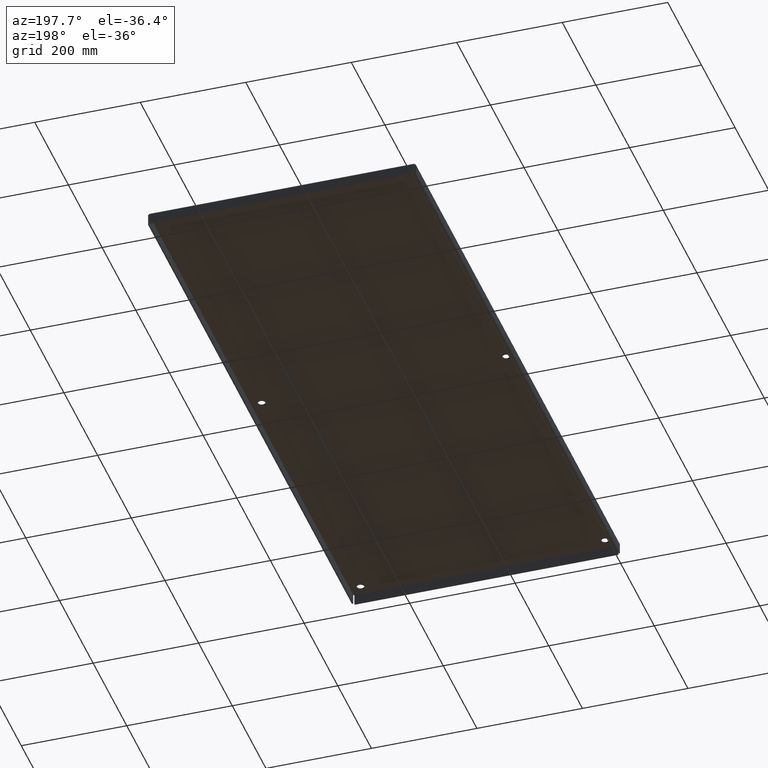
[diagram: clean part render]
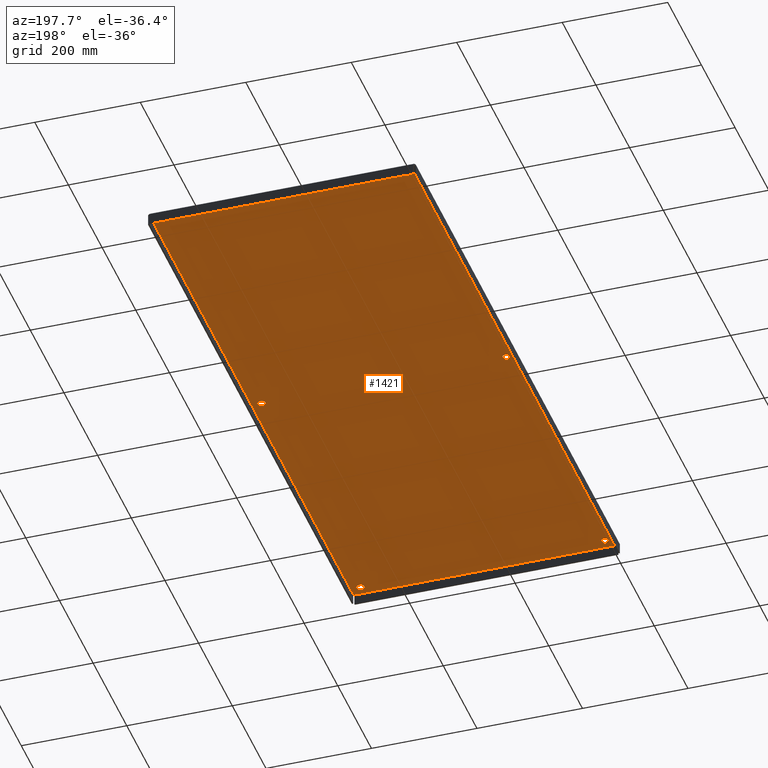
[diagram: same view with one face highlighted and labeled with its STEP entity id]
A machine part, auxiliary view. The second image highlights one B-rep face of the part: STEP entity #1421.
In plain terms, the highlighted planar face has unit normal (0, 0, 1).
Its self-contained STEP definition (entity closure, byte-faithful):
#90=CARTESIAN_POINT('',(19.406500000000001,24.000000000000011,0.0));
#91=VERTEX_POINT('',#90);
#92=CARTESIAN_POINT('',(19.125,24.000000000000011,0.0));
#93=DIRECTION('',(0.0,0.0,1.0));
#94=DIRECTION('',(1.0,0.0,0.0));
#95=AXIS2_PLACEMENT_3D('',#92,#93,#94);
#96=CIRCLE('',#95,0.2815);
#97=EDGE_CURVE('',#91,#91,#96,.T.);
#118=CARTESIAN_POINT('',(1.156499999999993,24.000000000000004,0.0));
#119=VERTEX_POINT('',#118);
#120=CARTESIAN_POINT('',(0.874999999999993,24.000000000000004,0.0));
#121=DIRECTION('',(0.0,0.0,1.0));
#122=DIRECTION('',(1.0,0.0,0.0));
#123=AXIS2_PLACEMENT_3D('',#120,#121,#122);
#124=CIRCLE('',#123,0.2815);
#125=EDGE_CURVE('',#119,#119,#124,.T.);
#146=CARTESIAN_POINT('',(19.406499999999994,47.125000000000021,0.0));
#147=VERTEX_POINT('',#146);
#148=CARTESIAN_POINT('',(19.124999999999996,47.125000000000021,0.0));
#149=DIRECTION('',(0.0,0.0,1.0));
#150=DIRECTION('',(1.0,0.0,0.0));
#151=AXIS2_PLACEMENT_3D('',#148,#149,#150);
#152=CIRCLE('',#151,0.2815);
#153=EDGE_CURVE('',#147,#147,#152,.T.);
#174=CARTESIAN_POINT('',(1.156499999999986,47.125000000000021,0.0));
#175=VERTEX_POINT('',#174);
#176=CARTESIAN_POINT('',(0.874999999999986,47.125000000000021,0.0));
#177=DIRECTION('',(0.0,0.0,1.0));
#178=DIRECTION('',(1.0,0.0,0.0));
#179=AXIS2_PLACEMENT_3D('',#176,#177,#178);
#180=CIRCLE('',#179,0.2815);
#181=EDGE_CURVE('',#175,#175,#180,.T.);
#202=CARTESIAN_POINT('',(1.156499999999976,0.875,0.0));
#203=VERTEX_POINT('',#202);
#204=CARTESIAN_POINT('',(0.874999999999976,0.875,0.0));
#205=DIRECTION('',(0.0,0.0,1.0));
#206=DIRECTION('',(1.0,0.0,0.0));
#207=AXIS2_PLACEMENT_3D('',#204,#205,#206);
#208=CIRCLE('',#207,0.2815);
#209=EDGE_CURVE('',#203,#203,#208,.T.);
#230=CARTESIAN_POINT('',(19.406499999999994,0.875,0.0));
#231=VERTEX_POINT('',#230);
#232=CARTESIAN_POINT('',(19.124999999999996,0.875,0.0));
#233=DIRECTION('',(0.0,0.0,1.0));
#234=DIRECTION('',(1.0,0.0,0.0));
#235=AXIS2_PLACEMENT_3D('',#232,#233,#234);
#236=CIRCLE('',#235,0.2815);
#237=EDGE_CURVE('',#231,#231,#236,.T.);
#389=CARTESIAN_POINT('',(19.890650000000001,0.10935,0.0));
#390=VERTEX_POINT('',#389);
#439=CARTESIAN_POINT('',(19.890650000000001,47.890650000000001,0.0));
#440=VERTEX_POINT('',#439);
#528=CARTESIAN_POINT('',(19.890649999999997,47.890650000000001,0.0));
#529=DIRECTION('',(0.0,-1.0,0.0));
#530=VECTOR('',#529,47.781300000000002);
#531=LINE('',#528,#530);
#532=EDGE_CURVE('',#440,#390,#531,.T.);
#719=CARTESIAN_POINT('',(0.109349999999985,47.890650000000008,0.0));
#720=VERTEX_POINT('',#719);
#808=CARTESIAN_POINT('',(0.109349999999987,47.890650000000008,0.0));
#809=DIRECTION('',(1.0,0.0,0.0));
#810=VECTOR('',#809,19.781300000000016);
#811=LINE('',#808,#810);
#812=EDGE_CURVE('',#720,#440,#811,.T.);
#999=CARTESIAN_POINT('',(0.10935,0.10935,0.0));
#1000=VERTEX_POINT('',#999);
#1088=CARTESIAN_POINT('',(0.109350000000001,0.109349999999999,0.0));
#1089=DIRECTION('',(0.0,1.0,0.0));
#1090=VECTOR('',#1089,47.781300000000009);
#1091=LINE('',#1088,#1090);
#1092=EDGE_CURVE('',#1000,#720,#1091,.T.);
#1352=CARTESIAN_POINT('',(19.890650000000001,0.10935,0.0));
#1353=DIRECTION('',(-1.0,0.0,0.0));
#1354=VECTOR('',#1353,19.781300000000002);
#1355=LINE('',#1352,#1354);
#1356=EDGE_CURVE('',#390,#1000,#1355,.T.);
#1392=CARTESIAN_POINT('',(9.999999999999995,24.000000000000004,0.0));
#1393=DIRECTION('',(0.0,0.0,1.0));
#1394=DIRECTION('',(1.0,0.0,0.0));
#1395=AXIS2_PLACEMENT_3D('',#1392,#1393,#1394);
#1396=PLANE('',#1395);
#1397=ORIENTED_EDGE('',*,*,#532,.T.);
#1398=ORIENTED_EDGE('',*,*,#1356,.T.);
#1399=ORIENTED_EDGE('',*,*,#1092,.T.);
#1400=ORIENTED_EDGE('',*,*,#812,.T.);
#1401=EDGE_LOOP('',(#1397,#1398,#1399,#1400));
#1402=FACE_OUTER_BOUND('',#1401,.T.);
#1403=ORIENTED_EDGE('',*,*,#97,.T.);
#1404=EDGE_LOOP('',(#1403));
#1405=FACE_BOUND('',#1404,.T.);
#1406=ORIENTED_EDGE('',*,*,#125,.T.);
#1407=EDGE_LOOP('',(#1406));
#1408=FACE_BOUND('',#1407,.T.);
#1409=ORIENTED_EDGE('',*,*,#153,.T.);
#1410=EDGE_LOOP('',(#1409));
#1411=FACE_BOUND('',#1410,.T.);
#1412=ORIENTED_EDGE('',*,*,#181,.T.);
#1413=EDGE_LOOP('',(#1412));
#1414=FACE_BOUND('',#1413,.T.);
#1415=ORIENTED_EDGE('',*,*,#209,.T.);
#1416=EDGE_LOOP('',(#1415));
#1417=FACE_BOUND('',#1416,.T.);
#1418=ORIENTED_EDGE('',*,*,#237,.T.);
#1419=EDGE_LOOP('',(#1418));
#1420=FACE_BOUND('',#1419,.T.);
#1421=ADVANCED_FACE('',(#1402,#1405,#1408,#1411,#1414,#1417,#1420),#1396,.F.);